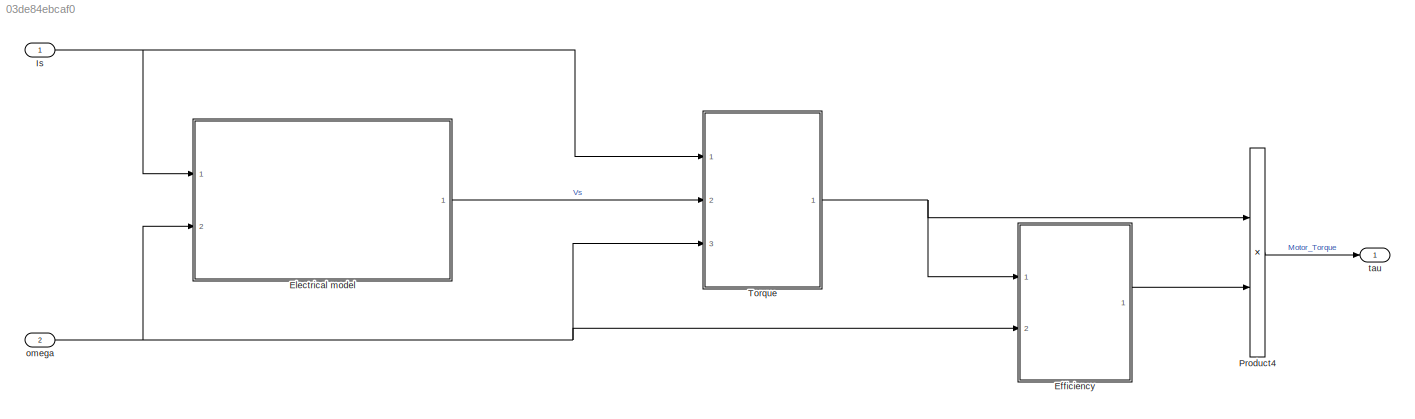
MODEL slx_03de84ebcaf0
KIND model
CONFIG InitFcn = Is_bus = Simulink.Bus;\nIq		= Simulink.BusElement;\nIq.Name	= 'Iq';\nId		= Simulink.BusElement;\nId.Name = 'Id';\nIs_bus.Elements = [Iq Id];\n
WORKSPACE source: external: MAT-File  (data not in archive)
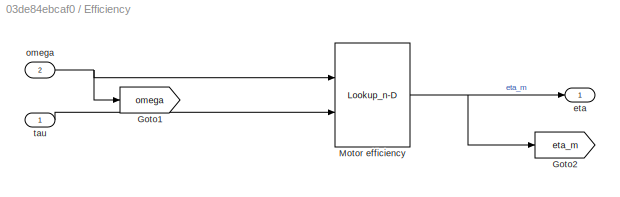
BLOCK [SubSystem] Efficiency
  Ports = [2, 1]
  RequestExecContextInheritance = off
BLOCK [Goto] Efficiency/Goto1
  GotoTag = omega
BLOCK [Goto] Efficiency/Goto2
  GotoTag = eta_m
BLOCK [Lookup_n-D] Efficiency/Motor efficiency
  BreakpointsForDimension1 = eta.speed
  BreakpointsForDimension2 = eta.tau
  InternalRulePriority = Speed
  Ports = [2, 1]
  RndMeth = Simplest
  Table = eta.eta
BLOCK [Outport] Efficiency/eta
  IconDisplay = Port number
BLOCK [Inport] Efficiency/omega
  IconDisplay = Port number
  Port = 2
BLOCK [Inport] Efficiency/tau
  IconDisplay = Port number
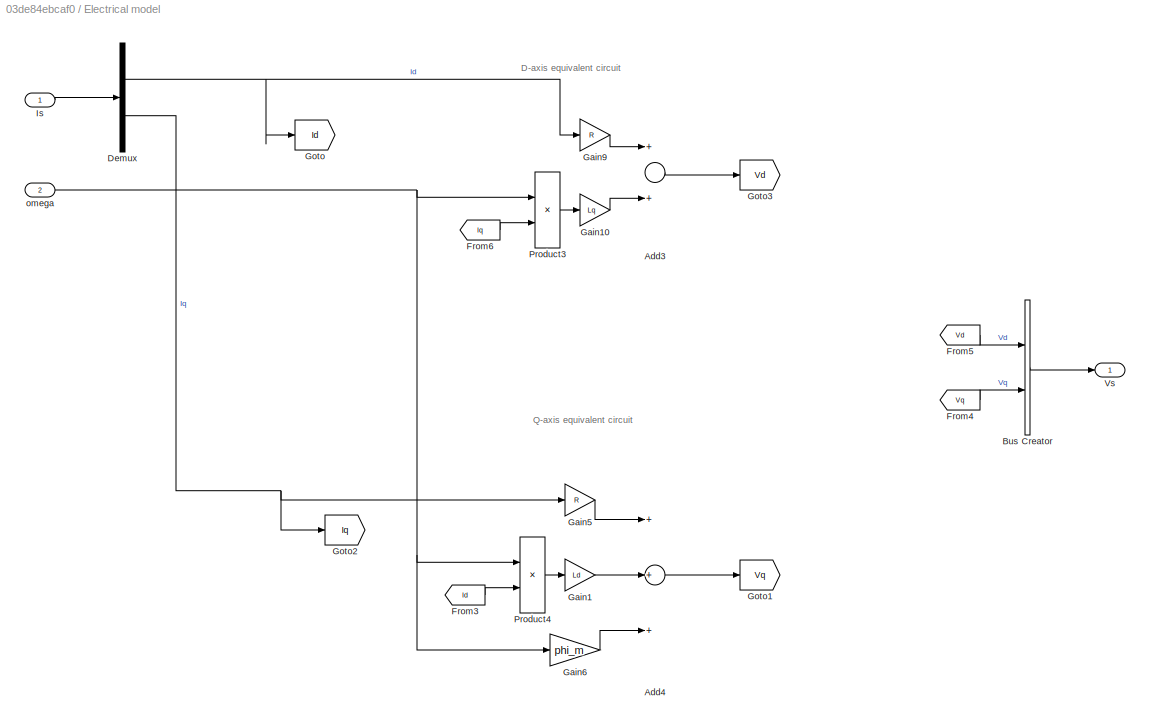
BLOCK [SubSystem] Electrical model
  Ports = [2, 1]
  RequestExecContextInheritance = off
BLOCK [Sum] Electrical model/Add3
  InputSameDT = off
  OutDataTypeStr = Inherit: Inherit via internal rule
  Ports = [2, 1]
  SaturateOnIntegerOverflow = off
BLOCK [Sum] Electrical model/Add4
  InputSameDT = off
  Inputs = +++
  OutDataTypeStr = Inherit: Inherit via internal rule
  Ports = [3, 1]
  SaturateOnIntegerOverflow = off
BLOCK [BusCreator] Electrical model/Bus Creator
  DisplayOption = bar
  Inputs = 'Vd','Vq'
  Ports = [2, 1]
BLOCK [Demux] Electrical model/Demux
  DisplayOption = bar
  Outputs = 2
  Ports = [1, 2]
BLOCK [From] Electrical model/From3
  GotoTag = Id
BLOCK [From] Electrical model/From4
  GotoTag = Vq
BLOCK [From] Electrical model/From5
  GotoTag = Vd
BLOCK [From] Electrical model/From6
  GotoTag = Iq
BLOCK [Gain] Electrical model/Gain1
  Gain = Ld
  OutDataTypeStr = Inherit: Inherit via internal rule
  ParamDataTypeStr = Inherit: Inherit via internal rule
  SaturateOnIntegerOverflow = off
BLOCK [Gain] Electrical model/Gain10
  Gain = Lq
  OutDataTypeStr = Inherit: Inherit via internal rule
  ParamDataTypeStr = Inherit: Inherit via internal rule
  SaturateOnIntegerOverflow = off
BLOCK [Gain] Electrical model/Gain5
  Gain = R
  OutDataTypeStr = Inherit: Inherit via internal rule
  ParamDataTypeStr = Inherit: Inherit via internal rule
  SaturateOnIntegerOverflow = off
BLOCK [Gain] Electrical model/Gain6
  Gain = phi_m
  OutDataTypeStr = Inherit: Inherit via internal rule
  ParamDataTypeStr = Inherit: Inherit via internal rule
  SaturateOnIntegerOverflow = off
BLOCK [Gain] Electrical model/Gain9
  Gain = R
  OutDataTypeStr = Inherit: Inherit via internal rule
  ParamDataTypeStr = Inherit: Inherit via internal rule
  SaturateOnIntegerOverflow = off
BLOCK [Goto] Electrical model/Goto
  GotoTag = Id
BLOCK [Goto] Electrical model/Goto1
  GotoTag = Vq
BLOCK [Goto] Electrical model/Goto2
  GotoTag = Iq
BLOCK [Goto] Electrical model/Goto3
  GotoTag = Vd
BLOCK [Inport] Electrical model/Is
  IconDisplay = Port number
BLOCK [Product] Electrical model/Product3
  InputSameDT = off
  OutDataTypeStr = Inherit: Inherit via internal rule
  Ports = [2, 1]
  RndMeth = Floor
  SaturateOnIntegerOverflow = off
BLOCK [Product] Electrical model/Product4
  InputSameDT = off
  OutDataTypeStr = Inherit: Inherit via internal rule
  Ports = [2, 1]
  RndMeth = Floor
  SaturateOnIntegerOverflow = off
BLOCK [Outport] Electrical model/Vs
  IconDisplay = Port number
BLOCK [Inport] Electrical model/omega
  IconDisplay = Port number
  Port = 2
BLOCK [Inport] Is
  IconDisplay = Port number
  OutDataTypeStr = Bus: Is_bus
BLOCK [Product] Product4
  InputSameDT = off
  OutDataTypeStr = Inherit: Inherit via internal rule
  Ports = [2, 1]
  RndMeth = Floor
  SaturateOnIntegerOverflow = off
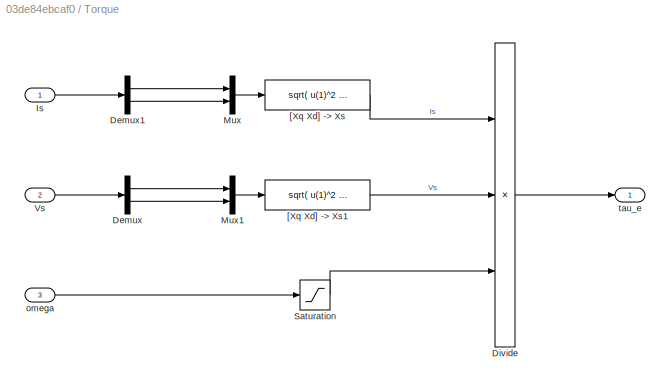
BLOCK [SubSystem] Torque
  Ports = [3, 1]
  RequestExecContextInheritance = off
BLOCK [Demux] Torque/Demux
  DisplayOption = bar
  Outputs = 2
  Ports = [1, 2]
BLOCK [Demux] Torque/Demux1
  DisplayOption = bar
  Outputs = 2
  Ports = [1, 2]
BLOCK [Product] Torque/Divide
  InputSameDT = off
  Inputs = **/
  OutDataTypeStr = Inherit: Inherit via internal rule
  Ports = [3, 1]
  RndMeth = Floor
  SaturateOnIntegerOverflow = off
BLOCK [Inport] Torque/Is
  IconDisplay = Port number
BLOCK [Mux] Torque/Mux
  DisplayOption = bar
  Inputs = 2
  Ports = [2, 1]
BLOCK [Mux] Torque/Mux1
  DisplayOption = bar
  Inputs = 2
  Ports = [2, 1]
BLOCK [Saturate] Torque/Saturation
  InputPortMap = u0
  LowerLimit = 0.1
  Ports = [1, 1]
  UpperLimit = inf
BLOCK [Inport] Torque/Vs
  IconDisplay = Port number
  Port = 2
BLOCK [Fcn] Torque/[Xq Xd] -> Xs
  Expr = sqrt( u(1)^2 + u(2)^2 )
BLOCK [Fcn] Torque/[Xq Xd] -> Xs1
  Expr = sqrt( u(1)^2 + u(2)^2 )
BLOCK [Inport] Torque/omega
  IconDisplay = Port number
  Port = 3
BLOCK [Outport] Torque/tau_e
  IconDisplay = Port number
BLOCK [Inport] omega
  IconDisplay = Port number
  Port = 2
BLOCK [Outport] tau
  IconDisplay = Port number
ANNOTATION Electrical model: D-axis equivalent circuit
ANNOTATION Electrical model: Q-axis equivalent circuit
NET Efficiency/Motor efficiency:1 -> Efficiency/Goto2:1, Efficiency/eta:1
NET Efficiency/omega:1 -> Efficiency/Goto1:1, Efficiency/Motor efficiency:1
LINE Efficiency/tau:1 -> Efficiency/Motor efficiency:2
LINE Efficiency:1 -> Product4:2
LINE Electrical model/Add3:1 -> Electrical model/Goto3:1
LINE Electrical model/Add4:1 -> Electrical model/Goto1:1
LINE Electrical model/Bus Creator:1 -> Electrical model/Vs:1
NET Electrical model/Demux:1 -> Electrical model/Gain9:1, Electrical model/Goto:1
NET Electrical model/Demux:2 -> Electrical model/Gain5:1, Electrical model/Goto2:1
LINE Electrical model/From3:1 -> Electrical model/Product4:2
LINE Electrical model/From4:1 -> Electrical model/Bus Creator:2
LINE Electrical model/From5:1 -> Electrical model/Bus Creator:1
LINE Electrical model/From6:1 -> Electrical model/Product3:2
LINE Electrical model/Gain10:1 -> Electrical model/Add3:2
LINE Electrical model/Gain1:1 -> Electrical model/Add4:2
LINE Electrical model/Gain5:1 -> Electrical model/Add4:1
LINE Electrical model/Gain6:1 -> Electrical model/Add4:3
LINE Electrical model/Gain9:1 -> Electrical model/Add3:1
LINE Electrical model/Is:1 -> Electrical model/Demux:1
LINE Electrical model/Product3:1 -> Electrical model/Gain10:1
LINE Electrical model/Product4:1 -> Electrical model/Gain1:1
NET Electrical model/omega:1 -> Electrical model/Gain6:1, Electrical model/Product3:1, Electrical model/Product4:1
LINE Electrical model:1 -> Torque:2
NET Is:1 -> Electrical model:1, Torque:1
LINE Product4:1 -> tau:1
LINE Torque/Demux1:1 -> Torque/Mux:1
LINE Torque/Demux1:2 -> Torque/Mux:2
LINE Torque/Demux:1 -> Torque/Mux1:1
LINE Torque/Demux:2 -> Torque/Mux1:2
LINE Torque/Divide:1 -> Torque/tau_e:1
LINE Torque/Is:1 -> Torque/Demux1:1
LINE Torque/Mux1:1 -> Torque/[Xq Xd] -> Xs1:1
LINE Torque/Mux:1 -> Torque/[Xq Xd] -> Xs:1
LINE Torque/Saturation:1 -> Torque/Divide:3
LINE Torque/Vs:1 -> Torque/Demux:1
LINE Torque/[Xq Xd] -> Xs1:1 -> Torque/Divide:2
LINE Torque/[Xq Xd] -> Xs:1 -> Torque/Divide:1
LINE Torque/omega:1 -> Torque/Saturation:1
NET Torque:1 -> Efficiency:1, Product4:1
NET omega:1 -> Efficiency:2, Electrical model:2, Torque:3
note: NET lines group one-source signal fan-out (src -> all destinations, sorted); 1:1 wires keep LINE
